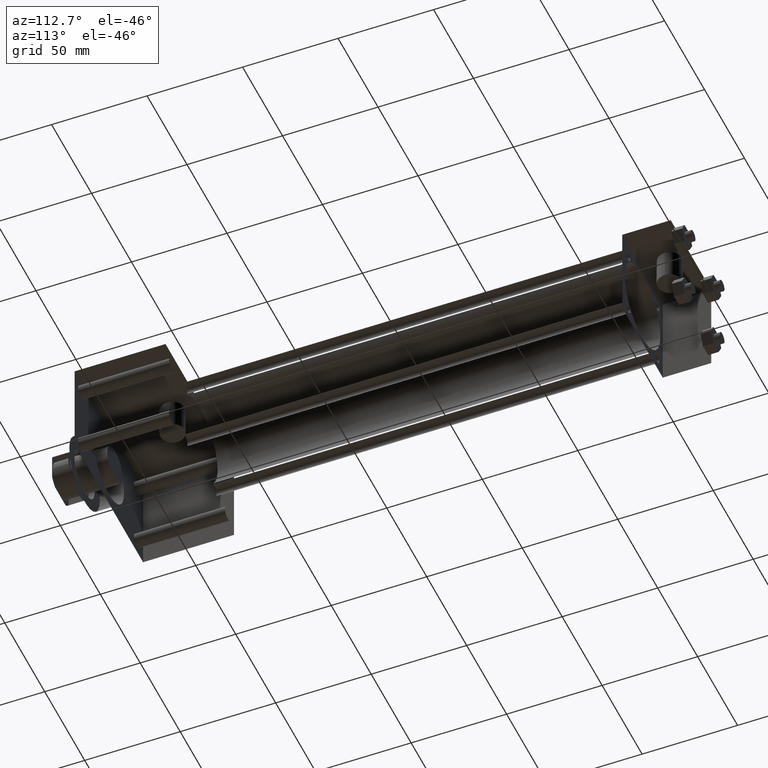
[diagram: clean part render]
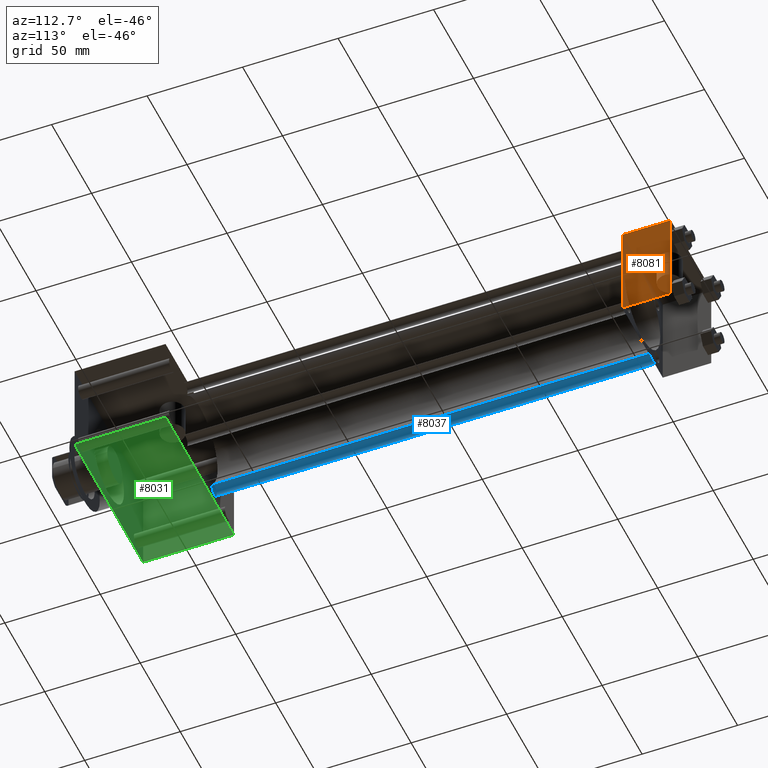
[diagram: same view with three faces highlighted in distinct colors, each labeled with its STEP entity id]
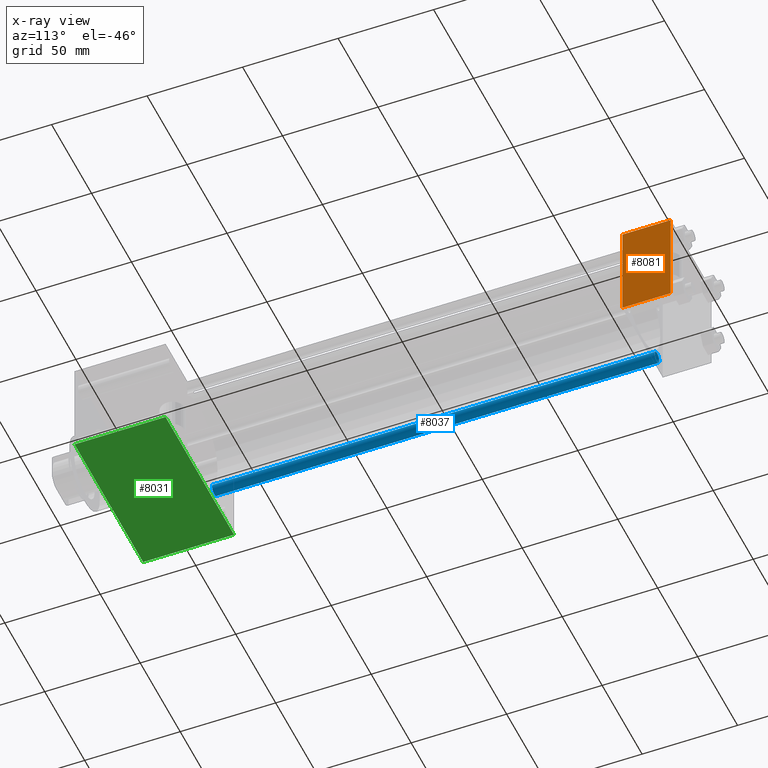
[diagram: x-ray of the same camera — body ghosted, the three highlighted faces saturated]
A machine part, auxiliary view with three faces highlighted in distinct colors.
The next image is the same camera in x-ray (body ghosted, the three faces saturated) — at least one of them is partly hidden behind the body in this view.
Their STEP definitions:

[orange] entity #8081 — the highlighted planar face has unit normal (1, 0, 0).
#2212=VERTEX_POINT('',#2214);
#2214=CARTESIAN_POINT('',(2.540000000E+001,3.302000000E+002,-2.540000000E+001));
#2227=VERTEX_POINT('',#2228);
#2228=CARTESIAN_POINT('',(2.540000000E+001,3.302000000E+002,2.540000000E+001));
#2229=EDGE_CURVE('',#2212,#2227,#2230,.T.);
#2230=LINE('',#2231,#2232);
#2231=CARTESIAN_POINT('',(2.540000000E+001,3.302000000E+002,-2.540000000E+001));
#2232=VECTOR('',#2233,1.0E+000);
#2233=DIRECTION('',(0.0E+000,0.0E+000,1.0E+000));
#2385=VERTEX_POINT('',#2387);
#2387=CARTESIAN_POINT('',(2.540000000E+001,3.048000000E+002,-2.540000000E+001));
#2388=EDGE_CURVE('',#2385,#2393,#2389,.T.);
#2389=LINE('',#2390,#2391);
#2390=CARTESIAN_POINT('',(2.540000000E+001,3.048000000E+002,-2.540000000E+001));
#2391=VECTOR('',#2392,1.0E+000);
#2392=DIRECTION('',(0.0E+000,0.0E+000,1.0E+000));
#2393=VERTEX_POINT('',#2394);
#2394=CARTESIAN_POINT('',(2.540000000E+001,3.048000000E+002,2.540000000E+001));
#2434=EDGE_CURVE('',#2212,#2385,#2435,.T.);
#2435=LINE('',#2436,#2437);
#2436=CARTESIAN_POINT('',(2.540000000E+001,3.302000000E+002,-2.540000000E+001));
#2437=VECTOR('',#2438,1.0E+000);
#2438=DIRECTION('',(0.0E+000,-1.0E+000,0.0E+000));
#2461=EDGE_CURVE('',#2227,#2393,#2462,.T.);
#2462=LINE('',#2463,#2464);
#2463=CARTESIAN_POINT('',(2.540000000E+001,3.302000000E+002,2.540000000E+001));
#2464=VECTOR('',#2465,1.0E+000);
#2465=DIRECTION('',(0.0E+000,-1.0E+000,0.0E+000));
#2507=FACE_OUTER_BOUND('',#2509,.T.);
#2508=FACE_BOUND('',#2510,.T.);
#2509=EDGE_LOOP('',(#2511,#2512,#2513,#2514));
#2510=EDGE_LOOP('',(#2515));
#2511=ORIENTED_EDGE('',*,*,#2388,.F.);
#2512=ORIENTED_EDGE('',*,*,#2434,.F.);
#2513=ORIENTED_EDGE('',*,*,#2229,.T.);
#2514=ORIENTED_EDGE('',*,*,#2461,.T.);
#2515=ORIENTED_EDGE('',*,*,#2516,.T.);
#2516=EDGE_CURVE('',#2522,#2522,#2517,.T.);
#2517=CIRCLE('',#2518,2.778125000E+000);
#2518=AXIS2_PLACEMENT_3D('',#2519,#2520,#2521);
#2519=CARTESIAN_POINT('',(2.540000000E+001,3.190875000E+002,0.000000000E+000));
#2520=DIRECTION('',(-1.0E+000,0.0E+000,0.0E+000));
#2521=DIRECTION('',(0.0E+000,1.0E+000,0.0E+000));
#2522=VERTEX_POINT('',#2523);
#2523=CARTESIAN_POINT('',(2.540000000E+001,3.218656250E+002,0.000000000E+000));
#2524=PLANE('',#2525);
#2525=AXIS2_PLACEMENT_3D('',#2526,#2527,#2528);
#2526=CARTESIAN_POINT('',(2.540000000E+001,3.302000000E+002,-2.540000000E+001));
#2527=DIRECTION('',(1.0E+000,0.0E+000,0.0E+000));
#2528=DIRECTION('',(0.0E+000,0.0E+000,-1.0E+000));
#8081=ADVANCED_FACE('',(#2507,#2508),#2524,.T.);

[blue] entity #8037 — the highlighted cylindrical surface (bore or boss wall) has radius 2.8575 mm, axis along (0, -1, 0).
#889=EDGE_CURVE('',#895,#895,#890,.T.);
#890=CIRCLE('',#891,2.857500000E+000);
#891=AXIS2_PLACEMENT_3D('',#892,#893,#894);
#892=CARTESIAN_POINT('',(-1.816100000E+001,7.302500000E+001,-1.816100000E+001));
#893=DIRECTION('',(0.0E+000,1.0E+000,0.0E+000));
#894=DIRECTION('',(1.0E+000,0.0E+000,0.0E+000));
#895=VERTEX_POINT('',#896);
#896=CARTESIAN_POINT('',(-1.530350000E+001,7.302500000E+001,-1.816100000E+001));
#1075=FACE_OUTER_BOUND('',#1077,.T.);
#1076=FACE_BOUND('',#1078,.T.);
#1077=EDGE_LOOP('',(#1079));
#1078=EDGE_LOOP('',(#1080));
#1079=ORIENTED_EDGE('',*,*,#1124,.F.);
#1080=ORIENTED_EDGE('',*,*,#889,.T.);
#1081=CYLINDRICAL_SURFACE('',#1082,2.857500000E+000);
#1082=AXIS2_PLACEMENT_3D('',#1083,#1084,#1085);
#1083=CARTESIAN_POINT('',(-1.816100000E+001,3.048000000E+002,-1.816100000E+001));
#1084=DIRECTION('',(0.0E+000,-1.0E+000,0.0E+000));
#1085=DIRECTION('',(0.0E+000,0.0E+000,-1.0E+000));
#1124=EDGE_CURVE('',#1130,#1130,#1125,.T.);
#1125=CIRCLE('',#1126,2.857500000E+000);
#1126=AXIS2_PLACEMENT_3D('',#1127,#1128,#1129);
#1127=CARTESIAN_POINT('',(-1.816100000E+001,3.048000000E+002,-1.816100000E+001));
#1128=DIRECTION('',(0.0E+000,1.0E+000,0.0E+000));
#1129=DIRECTION('',(1.0E+000,0.0E+000,0.0E+000));
#1130=VERTEX_POINT('',#1131);
#1131=CARTESIAN_POINT('',(-1.530350000E+001,3.048000000E+002,-1.816100000E+001));
#8037=ADVANCED_FACE('',(#1075,#1076),#1081,.T.);

[green] entity #8031 — the highlighted planar face has unit normal (0, 0, -1).
#553=EDGE_CURVE('',#559,#559,#554,.T.);
#554=CIRCLE('',#555,2.778125000E+000);
#555=AXIS2_PLACEMENT_3D('',#556,#557,#558);
#556=CARTESIAN_POINT('',(0.000000000E+000,5.556250000E+001,-2.540000000E+001));
#557=DIRECTION('',(0.0E+000,0.0E+000,-1.0E+000));
#558=DIRECTION('',(-1.0E+000,0.0E+000,0.0E+000));
#559=VERTEX_POINT('',#560);
#560=CARTESIAN_POINT('',(-2.778125000E+000,5.556250000E+001,-2.540000000E+001));
#738=EDGE_CURVE('',#743,#744,#739,.T.);
#739=LINE('',#740,#741);
#740=CARTESIAN_POINT('',(-4.286250000E+001,2.540000000E+001,-2.540000000E+001));
#741=VECTOR('',#742,1.0E+000);
#742=DIRECTION('',(1.0E+000,0.0E+000,0.0E+000));
#743=VERTEX_POINT('',#745);
#744=VERTEX_POINT('',#746);
#745=CARTESIAN_POINT('',(-4.286250000E+001,2.540000000E+001,-2.540000000E+001));
#746=CARTESIAN_POINT('',(4.286250000E+001,2.540000000E+001,-2.540000000E+001));
#804=FACE_OUTER_BOUND('',#806,.T.);
#805=FACE_BOUND('',#807,.T.);
#806=EDGE_LOOP('',(#808,#809,#810,#811));
#807=EDGE_LOOP('',(#831));
#808=ORIENTED_EDGE('',*,*,#812,.T.);
#809=ORIENTED_EDGE('',*,*,#738,.F.);
#810=ORIENTED_EDGE('',*,*,#819,.F.);
#811=ORIENTED_EDGE('',*,*,#826,.T.);
#812=EDGE_CURVE('',#817,#744,#813,.T.);
#813=LINE('',#814,#815);
#814=CARTESIAN_POINT('',(4.286250000E+001,7.302500000E+001,-2.540000000E+001));
#815=VECTOR('',#816,1.0E+000);
#816=DIRECTION('',(0.0E+000,-1.0E+000,0.0E+000));
#817=VERTEX_POINT('',#818);
#818=CARTESIAN_POINT('',(4.286250000E+001,7.302500000E+001,-2.540000000E+001));
#819=EDGE_CURVE('',#824,#743,#820,.T.);
#820=LINE('',#821,#822);
#821=CARTESIAN_POINT('',(-4.286250000E+001,7.302500000E+001,-2.540000000E+001));
#822=VECTOR('',#823,1.0E+000);
#823=DIRECTION('',(0.0E+000,-1.0E+000,0.0E+000));
#824=VERTEX_POINT('',#825);
#825=CARTESIAN_POINT('',(-4.286250000E+001,7.302500000E+001,-2.540000000E+001));
#826=EDGE_CURVE('',#824,#817,#827,.T.);
#827=LINE('',#828,#829);
#828=CARTESIAN_POINT('',(-4.286250000E+001,7.302500000E+001,-2.540000000E+001));
#829=VECTOR('',#830,1.0E+000);
#830=DIRECTION('',(1.0E+000,0.0E+000,0.0E+000));
#831=ORIENTED_EDGE('',*,*,#553,.F.);
#832=PLANE('',#833);
#833=AXIS2_PLACEMENT_3D('',#834,#835,#836);
#834=CARTESIAN_POINT('',(-4.286250000E+001,7.302500000E+001,-2.540000000E+001));
#835=DIRECTION('',(0.0E+000,0.0E+000,-1.0E+000));
#836=DIRECTION('',(-1.0E+000,0.0E+000,0.0E+000));
#8031=ADVANCED_FACE('',(#804,#805),#832,.T.);